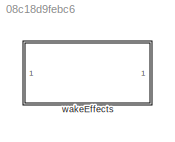
MODEL slx_08c18d9febc6
KIND library
CONFIG AbsTol = auto
CONFIG EnableMultiTasking = off
CONFIG FixedStep = auto
CONFIG MaxStep = auto
CONFIG MinStep = auto
CONFIG RelTol = 1e-3
CONFIG SampleTimeConstraint = Unconstrained
CONFIG SolverName = VariableStepAuto
CONFIG StartTime = 0.0
CONFIG StopTime = 10.0
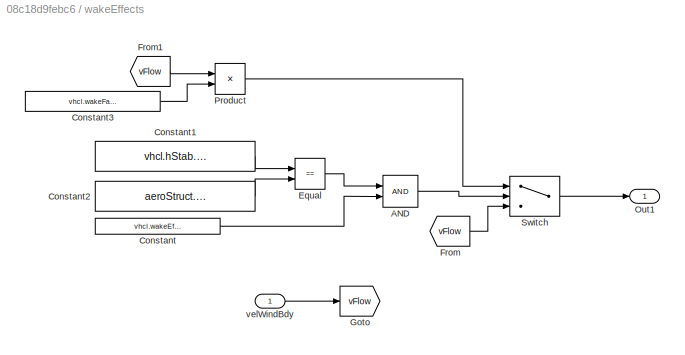
BLOCK [SubSystem] wakeEffects
  Ports = [1, 1]
  RequestExecContextInheritance = off
BLOCK [Logic] wakeEffects/AND
  AllPortsSameDT = off
  IconShape = distinctive
  OutDataTypeStr = boolean
  Ports = [2, 1]
BLOCK [Constant] wakeEffects/Constant
  Value = vhcl.wakeEffect.Value
BLOCK [Constant] wakeEffects/Constant1
  Value = vhcl.hStab.planformArea.Value
BLOCK [Constant] wakeEffects/Constant2
  Value = aeroStruct.planformArea.Value
BLOCK [Constant] wakeEffects/Constant3
  Value = vhcl.wakeFactor.Value
BLOCK [RelationalOperator] wakeEffects/Equal
  InputSameDT = off
  Operator = ==
  OutDataTypeStr = boolean
  Ports = [2, 1]
  RndMeth = Simplest
BLOCK [From] wakeEffects/From
  GotoTag = vFlow
BLOCK [From] wakeEffects/From1
  GotoTag = vFlow
BLOCK [Goto] wakeEffects/Goto
  GotoTag = vFlow
BLOCK [Outport] wakeEffects/Out1
BLOCK [Product] wakeEffects/Product
  Ports = [2, 1]
BLOCK [Switch] wakeEffects/Switch
  Criteria = u2 > Threshold
  InputSameDT = off
  SaturateOnIntegerOverflow = off
BLOCK [Inport] wakeEffects/velWindBdy
LINE wakeEffects/AND:1 -> wakeEffects/Switch:2
LINE wakeEffects/Constant1:1 -> wakeEffects/Equal:1
LINE wakeEffects/Constant2:1 -> wakeEffects/Equal:2
LINE wakeEffects/Constant3:1 -> wakeEffects/Product:2
LINE wakeEffects/Constant:1 -> wakeEffects/AND:2
LINE wakeEffects/Equal:1 -> wakeEffects/AND:1
LINE wakeEffects/From1:1 -> wakeEffects/Product:1
LINE wakeEffects/From:1 -> wakeEffects/Switch:3
LINE wakeEffects/Product:1 -> wakeEffects/Switch:1
LINE wakeEffects/Switch:1 -> wakeEffects/Out1:1
LINE wakeEffects/velWindBdy:1 -> wakeEffects/Goto:1
